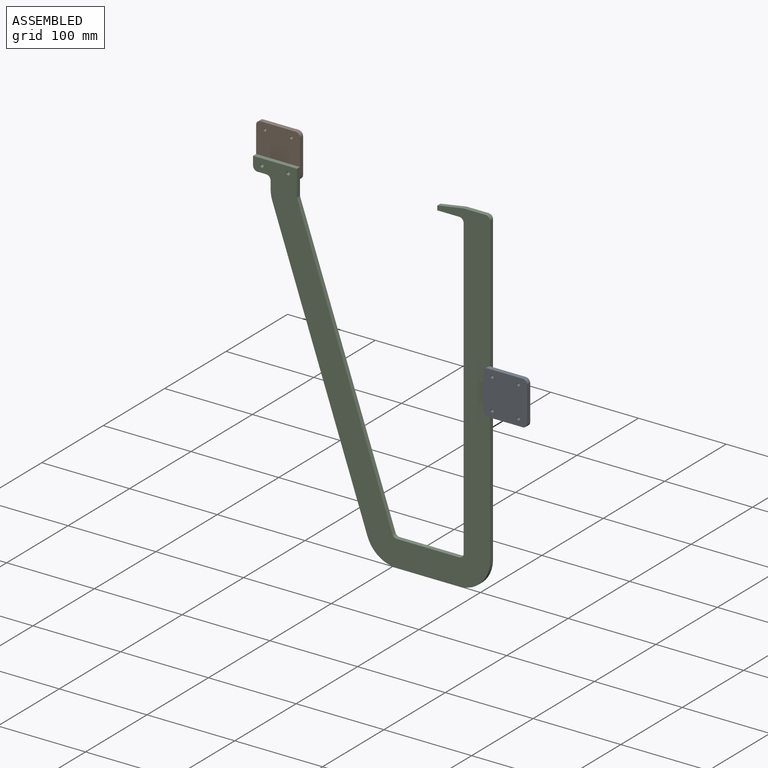
[diagram: assembled view]
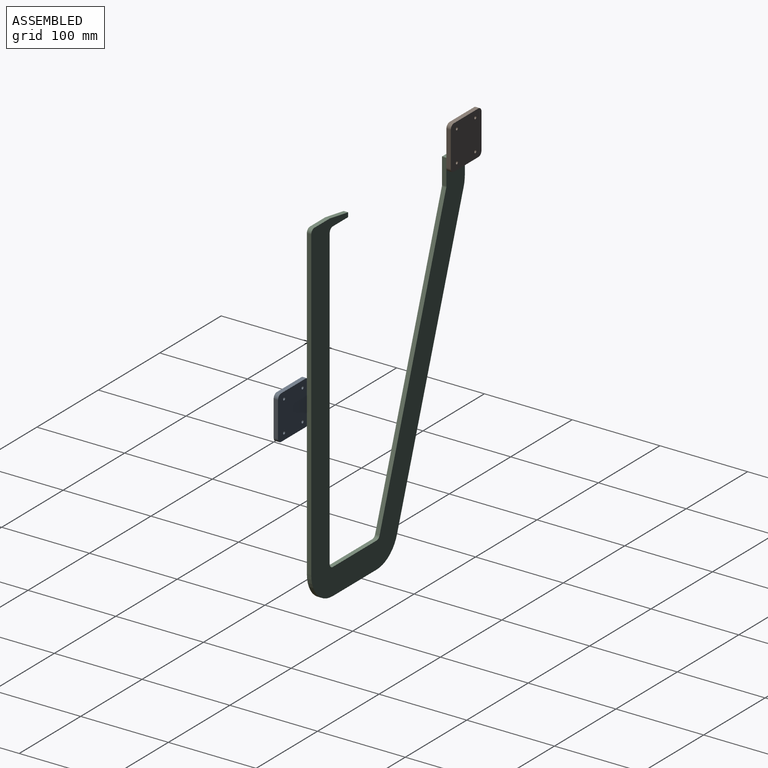
[diagram: assembled view, second angle]
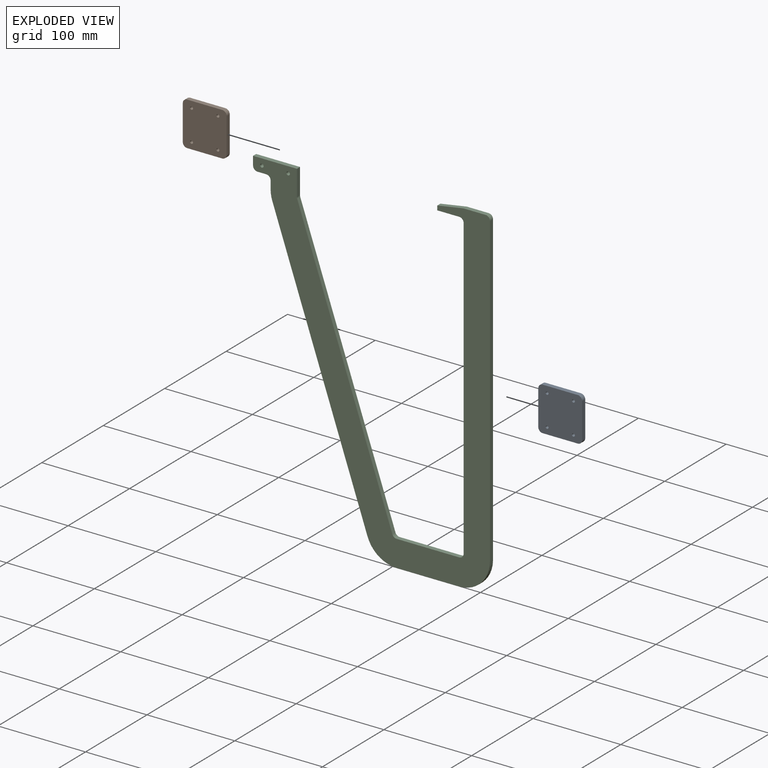
[diagram: exploded view]
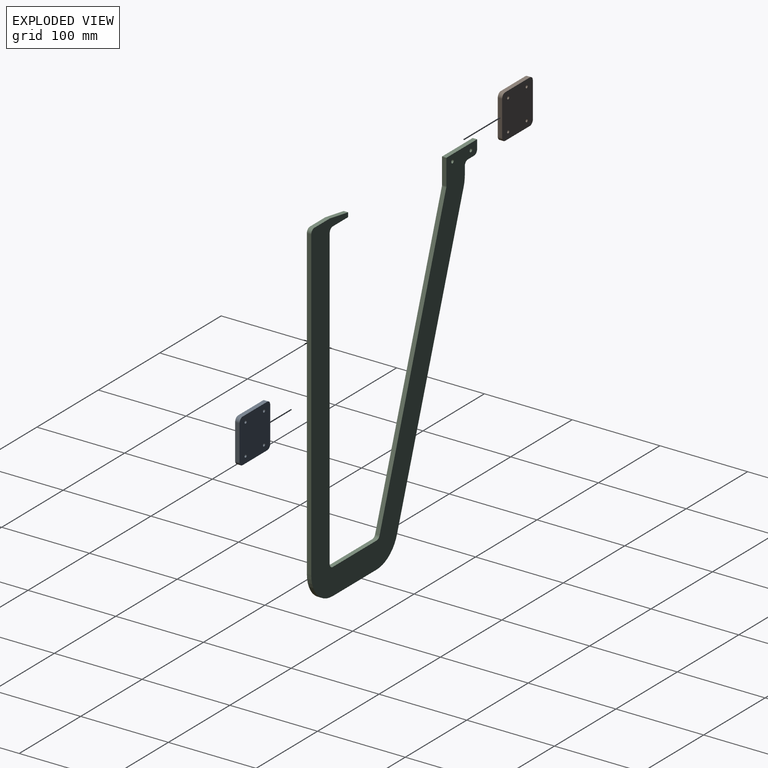
[diagram: exploded view, second angle]
ASSEMBLY  parts=3 mates=3
PART A: 14 faces, bbox 50x5x50 mm
  f0: plane 40x5mm, normal (1,0,0), area 200mm2, adj f4,f5,f6,f9
  f1: plane 40x5mm, normal (0,0,1), area 200mm2, adj f4,f5,f6,f7
  f2: plane 40x5mm, normal (-1,0,0), area 200mm2, adj f4,f5,f7,f8
  f3: plane 40x5mm, normal (0,0,-1), area 200mm2, adj f4,f5,f8,f9
  f4: plane 50x50mm, normal (0,-1,0), area 2444.3mm2, adj f0,f1,f2,f3,f6,f7,f8,f9
  f5: plane 50x50mm, normal (0,1,0), area 2444.3mm2, adj f0,f1,f2,f3,f6,f7,f8,f9
  f6: cylinder r=5mm len=5mm, axis (0,-1,0), area 39.3mm2, adj f0,f1,f4,f5
  f7: cylinder r=5mm len=5mm, axis (0,1,0), area 39.3mm2, adj f1,f2,f4,f5
  f8: cylinder r=5mm len=5mm, axis (0,-1,0), area 39.3mm2, adj f2,f3,f4,f5
  f9: cylinder r=5mm len=5mm, axis (0,1,0), area 39.3mm2, adj f0,f3,f4,f5
  f10: cylinder r=1.65mm len=5mm, axis (0,1,0), area 51.8mm2, adj f4,f5
  f11: cylinder r=1.65mm len=5mm, axis (0,1,0), area 51.8mm2, adj f4,f5
  f12: cylinder r=1.65mm len=5mm, axis (0,-1,0), area 51.8mm2, adj f4,f5
  f13: cylinder r=1.65mm len=5mm, axis (0,-1,0), area 51.8mm2, adj f4,f5
PART B: same geometry as A
PART C: 30 faces, bbox 270x5x390.8 mm
  f0: plane 316.67x108.57mm, normal (-0.95,0,-0.32), area 1673.8mm2, adj f15,f16,f25,f27
  f1: plane 71.43x5mm, normal (0,0,-1), area 357.1mm2, adj f15,f16,f25,f26
  f2: plane 350.83x5mm, normal (1,0,0), area 1754.2mm2, adj f15,f16,f17,f26
  f3: plane 24.59x5mm, normal (0,0,1), area 122.9mm2, adj f15,f16,f17,f18
  f4: plane 29.59x5mm, normal (-0.16,0,0.99), area 150mm2, adj f5,f15,f16,f18
  f5: plane 5x5mm, normal (-1,0,0), area 25mm2, adj f4,f6,f15,f16
  f6: plane 25x5mm, normal (0,0,-1), area 125mm2, adj f5,f15,f16,f19
  f7: plane 340.83x5mm, normal (-1,0,0), area 1704.2mm2, adj f15,f16,f19,f20
  f8: plane 71.43x5mm, normal (0,0,1), area 357.1mm2, adj f15,f16,f20,f21
  f9: plane 316.67x108.57mm, normal (0.95,0,0.32), area 1673.8mm2, adj f15,f16,f21,f22
  f10: plane 29.17x5mm, normal (1,0,0), area 145.8mm2, adj f11,f15,f16,f22
  f11: plane 50x5mm, normal (0,0,1), area 250mm2, adj f10,f12,f15,f16
  f12: plane 10x5mm, normal (-1,0,0), area 50mm2, adj f11,f15,f16,f23
  f13: plane 10x5mm, normal (0,0,-1), area 50mm2, adj f15,f16,f23,f24
  f14: plane 9.17x5mm, normal (-1,0,0), area 45.8mm2, adj f15,f16,f24,f27
  f15: plane 390.83x270mm, normal (0,-1,0), area 26120.5mm2, adj f0,f1,f2,f3,f4,f5,f6,f7
  f16: plane 390.83x270mm, normal (0,1,0), area 26120.5mm2, adj f0,f1,f2,f3,f4,f5,f6,f7
  f17: cylinder r=5mm len=5mm, axis (0,1,0), area 39.3mm2, adj f2,f3,f15,f16
  f18: cylinder r=5mm len=5mm, axis (0,1,0), area 4.1mm2, adj f3,f4,f15,f16
  f19: cylinder r=5mm len=5mm, axis (0,-1,0), area 39.3mm2, adj f6,f7,f15,f16
  f20: cylinder r=5mm len=5mm, axis (0,-1,0), area 39.3mm2, adj f7,f8,f15,f16
  f21: cylinder r=5mm len=5mm, axis (0,-1,0), area 31mm2, adj f8,f9,f15,f16
  f22: cylinder r=5mm len=5mm, axis (0,-1,0), area 8.3mm2, adj f9,f10,f15,f16
  f23: cylinder r=5mm len=5mm, axis (0,1,0), area 39.3mm2, adj f12,f13,f15,f16
  f24: cylinder r=5mm len=5mm, axis (0,-1,0), area 39.3mm2, adj f13,f14,f15,f16
  f25: cylinder r=35mm len=33.11mm, axis (0,1,0), area 217.1mm2, adj f0,f1,f15,f16
  f26: cylinder r=35mm len=35mm, axis (0,1,0), area 274.9mm2, adj f1,f2,f15,f16
  f27: cylinder r=35mm len=11.35mm, axis (0,1,0), area 57.8mm2, adj f0,f14,f15,f16
  f28: cylinder r=2mm len=5mm, axis (0,1,0), area 62.8mm2, adj f15,f16
  f29: cylinder r=2mm len=5mm, axis (0,1,0), area 62.8mm2, adj f15,f16
PLACE A at identity
PLACE B t=(-266.21,10.47,179.33)mm
PLACE C t=(-51.21,5.47,169.33)mm fixed
MATE planar B.f3 <-> C.f13  axis (0,0,-1) through (-266.21,10.47,154.33)mm
MATE planar B.f4 <-> C.f16  axis (0,-1,0) through (-266.21,7.97,179.33)mm
MATE planar B.f2 <-> C.f12  axis (-1,0,0) through (-291.21,10.47,179.33)mm
